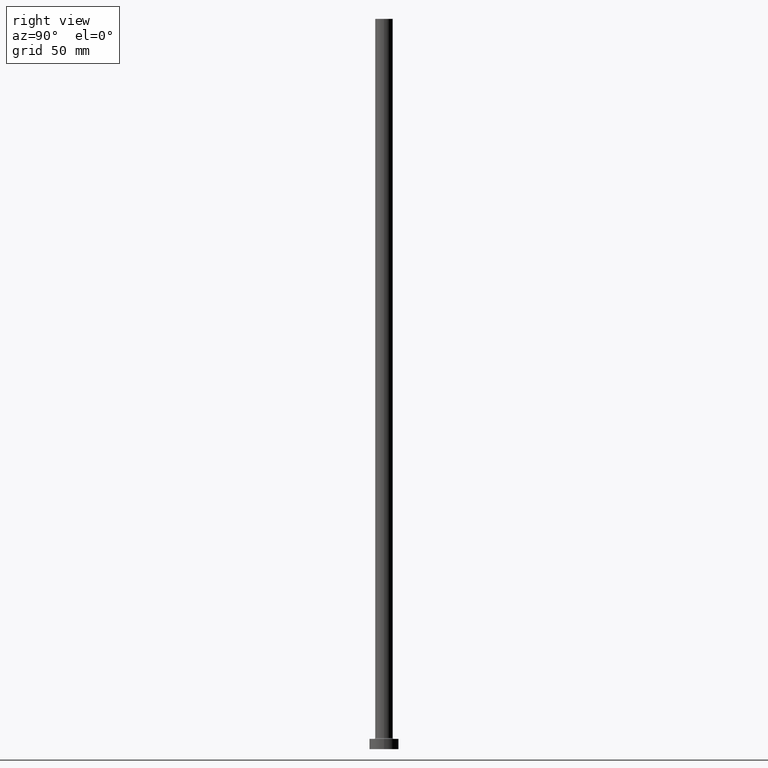
[diagram: clean part render]
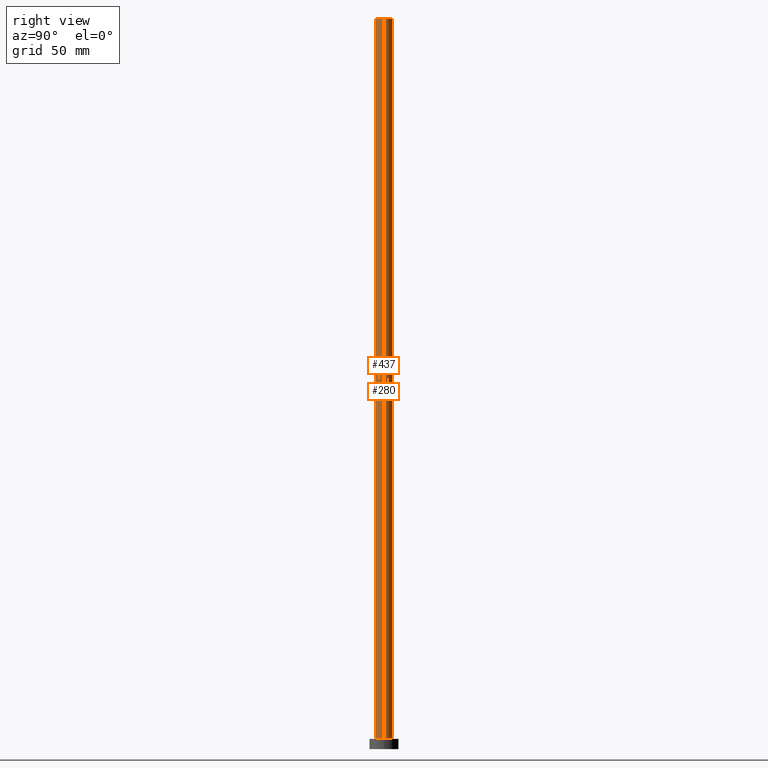
[diagram: same view with one multi-face feature highlighted, each face labeled with its STEP entity id]
A machine part, right view. The highlighted faces form ONE feature: a constant-radius fillet chain: 2 tangent blend faces with common blend radius 6 mm. The faces share edges in the B-rep.
Their STEP definitions:
[1] entity #437 (Cylinder):
#29 = VERTEX_POINT ( 'NONE', #189 ) ;
#32 = ORIENTED_EDGE ( 'NONE', *, *, #199, .T. ) ;
#34 = DIRECTION ( 'NONE',  ( 0.000000000000000000, 0.000000000000000000, 1.000000000000000000 ) ) ;
#36 = VERTEX_POINT ( 'NONE', #407 ) ;
#42 = EDGE_LOOP ( 'NONE', ( #55, #397, #249, #32 ) ) ;
#43 = AXIS2_PLACEMENT_3D ( 'NONE', #305, #202, #238 ) ;
#54 = LINE ( 'NONE', #197, #65 ) ;
#55 = ORIENTED_EDGE ( 'NONE', *, *, #118, .F. ) ;
#65 = VECTOR ( 'NONE', #117, 1000.000000000000000 ) ;
#75 = CARTESIAN_POINT ( 'NONE',  ( 0.000000000000000000, 0.000000000000000000, 500.0000000000000000 ) ) ;
#111 = DIRECTION ( 'NONE',  ( 0.000000000000000000, 0.000000000000000000, 1.000000000000000000 ) ) ;
#117 = DIRECTION ( 'NONE',  ( -0.000000000000000000, -0.000000000000000000, -1.000000000000000000 ) ) ;
#118 = EDGE_CURVE ( 'NONE', #454, #29, #157, .T. ) ;
#157 = LINE ( 'NONE', #240, #335 ) ;
#175 = VERTEX_POINT ( 'NONE', #182 ) ;
#182 = CARTESIAN_POINT ( 'NONE',  ( -6.000000000000000888, 0.000000000000000000, 7.699999999999985079 ) ) ;
#189 = CARTESIAN_POINT ( 'NONE',  ( 6.000000000000000888, 7.347880794884120722E-16, 7.699999999999985079 ) ) ;
#197 = CARTESIAN_POINT ( 'NONE',  ( -6.000000000000000888, 0.000000000000000000, 500.0000000000000000 ) ) ;
#199 = EDGE_CURVE ( 'NONE', #175, #29, #444, .T. ) ;
#202 = DIRECTION ( 'NONE',  ( -0.000000000000000000, -0.000000000000000000, -1.000000000000000000 ) ) ;
#211 = DIRECTION ( 'NONE',  ( 1.000000000000000000, 0.000000000000000000, 0.000000000000000000 ) ) ;
#233 = FACE_OUTER_BOUND ( 'NONE', #42, .T. ) ;
#235 = CYLINDRICAL_SURFACE ( 'NONE', #43, 6.000000000000000888 ) ;
#237 = CIRCLE ( 'NONE', #350, 6.000000000000000888 ) ;
#238 = DIRECTION ( 'NONE',  ( -1.000000000000000000, 0.000000000000000000, 0.000000000000000000 ) ) ;
#240 = CARTESIAN_POINT ( 'NONE',  ( 6.000000000000000888, 7.347880794884120722E-16, 500.0000000000000000 ) ) ;
#249 = ORIENTED_EDGE ( 'NONE', *, *, #396, .T. ) ;
#254 = DIRECTION ( 'NONE',  ( 1.000000000000000000, 0.000000000000000000, 0.000000000000000000 ) ) ;
#305 = CARTESIAN_POINT ( 'NONE',  ( 0.000000000000000000, 0.000000000000000000, 500.0000000000000000 ) ) ;
#313 = EDGE_CURVE ( 'NONE', #36, #454, #237, .T. ) ;
#325 = AXIS2_PLACEMENT_3D ( 'NONE', #356, #34, #211 ) ;
#335 = VECTOR ( 'NONE', #342, 1000.000000000000000 ) ;
#342 = DIRECTION ( 'NONE',  ( -0.000000000000000000, -0.000000000000000000, -1.000000000000000000 ) ) ;
#350 = AXIS2_PLACEMENT_3D ( 'NONE', #75, #111, #254 ) ;
#356 = CARTESIAN_POINT ( 'NONE',  ( 0.000000000000000000, 0.000000000000000000, 7.699999999999985079 ) ) ;
#396 = EDGE_CURVE ( 'NONE', #36, #175, #54, .T. ) ;
#397 = ORIENTED_EDGE ( 'NONE', *, *, #313, .F. ) ;
#407 = CARTESIAN_POINT ( 'NONE',  ( -6.000000000000000888, 0.000000000000000000, 500.0000000000000000 ) ) ;
#414 = CARTESIAN_POINT ( 'NONE',  ( 6.000000000000000888, 7.347880794884120722E-16, 500.0000000000000000 ) ) ;
#437 = ADVANCED_FACE ( 'NONE', ( #233 ), #235, .T. ) ;
#444 = CIRCLE ( 'NONE', #325, 6.000000000000000888 ) ;
#454 = VERTEX_POINT ( 'NONE', #414 ) ;
[2] entity #280 (Cylinder):
#22 = ORIENTED_EDGE ( 'NONE', *, *, #118, .T. ) ;
#29 = VERTEX_POINT ( 'NONE', #189 ) ;
#31 = DIRECTION ( 'NONE',  ( -1.000000000000000000, 0.000000000000000000, 0.000000000000000000 ) ) ;
#36 = VERTEX_POINT ( 'NONE', #407 ) ;
#38 = ORIENTED_EDGE ( 'NONE', *, *, #184, .F. ) ;
#44 = EDGE_LOOP ( 'NONE', ( #38, #22, #143, #186 ) ) ;
#54 = LINE ( 'NONE', #197, #65 ) ;
#65 = VECTOR ( 'NONE', #117, 1000.000000000000000 ) ;
#94 = DIRECTION ( 'NONE',  ( 0.000000000000000000, 0.000000000000000000, 1.000000000000000000 ) ) ;
#105 = DIRECTION ( 'NONE',  ( -0.000000000000000000, -0.000000000000000000, -1.000000000000000000 ) ) ;
#114 = AXIS2_PLACEMENT_3D ( 'NONE', #351, #248, #314 ) ;
#117 = DIRECTION ( 'NONE',  ( -0.000000000000000000, -0.000000000000000000, -1.000000000000000000 ) ) ;
#118 = EDGE_CURVE ( 'NONE', #454, #29, #157, .T. ) ;
#143 = ORIENTED_EDGE ( 'NONE', *, *, #385, .T. ) ;
#147 = AXIS2_PLACEMENT_3D ( 'NONE', #398, #94, #367 ) ;
#157 = LINE ( 'NONE', #240, #335 ) ;
#175 = VERTEX_POINT ( 'NONE', #182 ) ;
#182 = CARTESIAN_POINT ( 'NONE',  ( -6.000000000000000888, 0.000000000000000000, 7.699999999999985079 ) ) ;
#184 = EDGE_CURVE ( 'NONE', #454, #36, #195, .T. ) ;
#186 = ORIENTED_EDGE ( 'NONE', *, *, #396, .F. ) ;
#189 = CARTESIAN_POINT ( 'NONE',  ( 6.000000000000000888, 7.347880794884120722E-16, 7.699999999999985079 ) ) ;
#195 = CIRCLE ( 'NONE', #114, 6.000000000000000888 ) ;
#197 = CARTESIAN_POINT ( 'NONE',  ( -6.000000000000000888, 0.000000000000000000, 500.0000000000000000 ) ) ;
#240 = CARTESIAN_POINT ( 'NONE',  ( 6.000000000000000888, 7.347880794884120722E-16, 500.0000000000000000 ) ) ;
#248 = DIRECTION ( 'NONE',  ( 0.000000000000000000, 0.000000000000000000, 1.000000000000000000 ) ) ;
#280 = ADVANCED_FACE ( 'NONE', ( #455 ), #348, .T. ) ;
#296 = AXIS2_PLACEMENT_3D ( 'NONE', #451, #105, #31 ) ;
#314 = DIRECTION ( 'NONE',  ( 1.000000000000000000, 0.000000000000000000, 0.000000000000000000 ) ) ;
#335 = VECTOR ( 'NONE', #342, 1000.000000000000000 ) ;
#342 = DIRECTION ( 'NONE',  ( -0.000000000000000000, -0.000000000000000000, -1.000000000000000000 ) ) ;
#348 = CYLINDRICAL_SURFACE ( 'NONE', #296, 6.000000000000000888 ) ;
#351 = CARTESIAN_POINT ( 'NONE',  ( 0.000000000000000000, 0.000000000000000000, 500.0000000000000000 ) ) ;
#367 = DIRECTION ( 'NONE',  ( 1.000000000000000000, 0.000000000000000000, 0.000000000000000000 ) ) ;
#385 = EDGE_CURVE ( 'NONE', #29, #175, #391, .T. ) ;
#391 = CIRCLE ( 'NONE', #147, 6.000000000000000888 ) ;
#396 = EDGE_CURVE ( 'NONE', #36, #175, #54, .T. ) ;
#398 = CARTESIAN_POINT ( 'NONE',  ( 0.000000000000000000, 0.000000000000000000, 7.699999999999985079 ) ) ;
#407 = CARTESIAN_POINT ( 'NONE',  ( -6.000000000000000888, 0.000000000000000000, 500.0000000000000000 ) ) ;
#414 = CARTESIAN_POINT ( 'NONE',  ( 6.000000000000000888, 7.347880794884120722E-16, 500.0000000000000000 ) ) ;
#451 = CARTESIAN_POINT ( 'NONE',  ( 0.000000000000000000, 0.000000000000000000, 500.0000000000000000 ) ) ;
#454 = VERTEX_POINT ( 'NONE', #414 ) ;
#455 = FACE_OUTER_BOUND ( 'NONE', #44, .T. ) ;